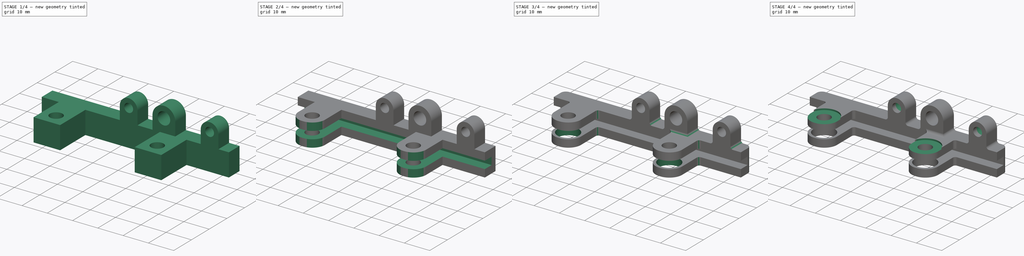
[diagram: build sequence overview — one tinted view per stage of 4, left to right]
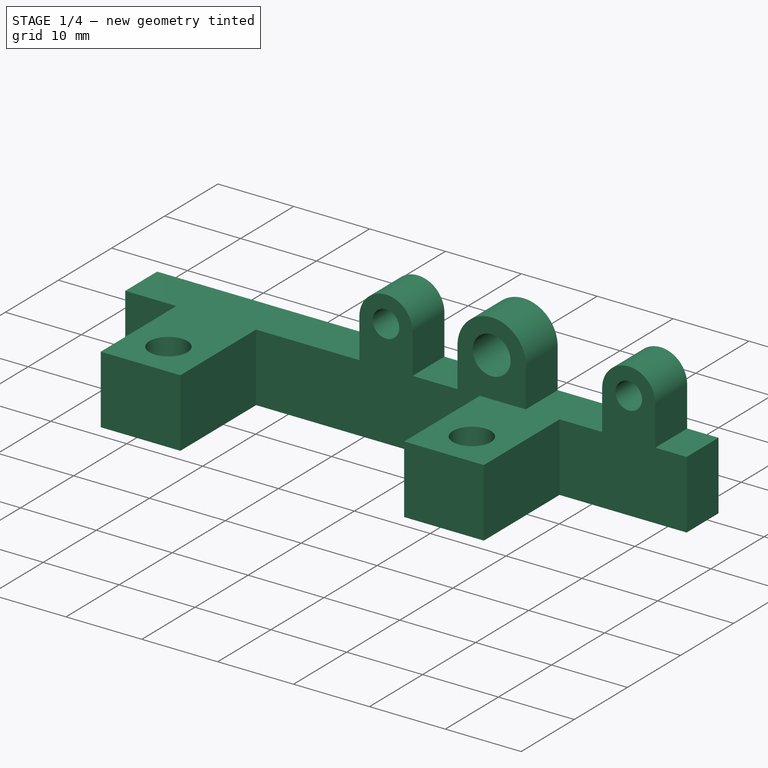
[diagram: stage 1 of 4 — iso view after this stage's code; geometry added in this stage tinted green]
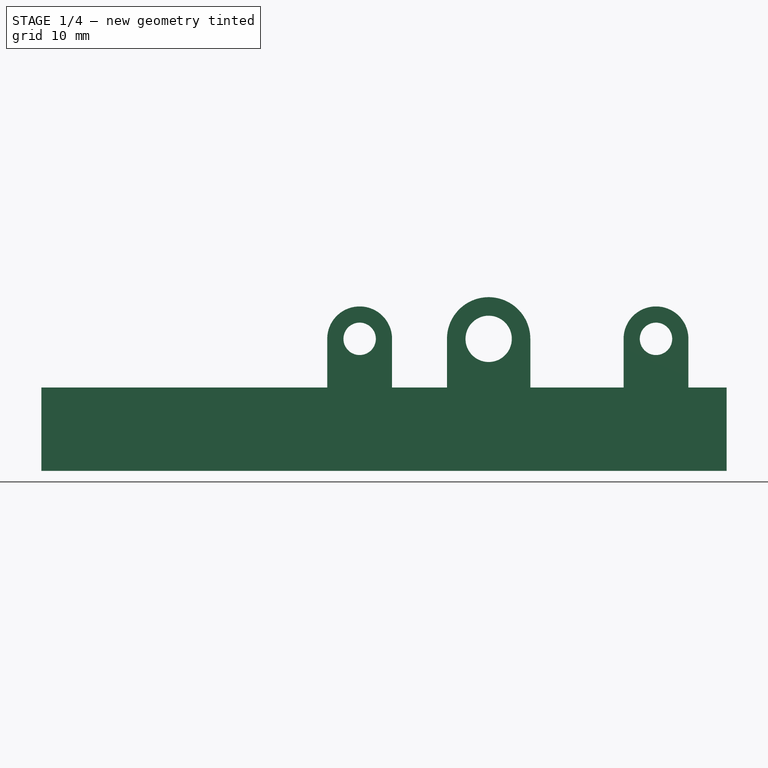
[diagram: stage 1 of 4 — front view after this stage's code; geometry added in this stage tinted green]
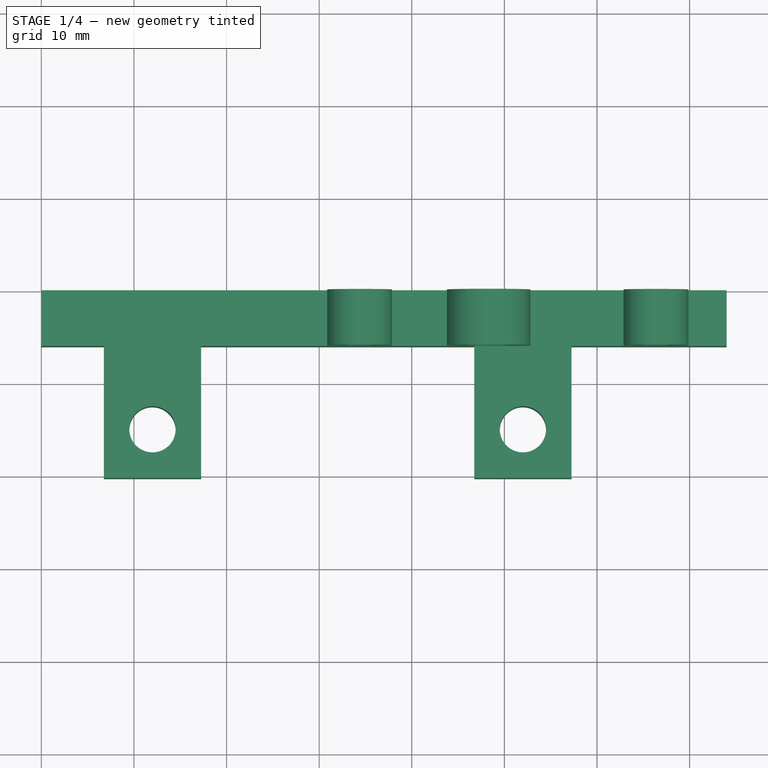
[diagram: stage 1 of 4 — top view after this stage's code; geometry added in this stage tinted green]
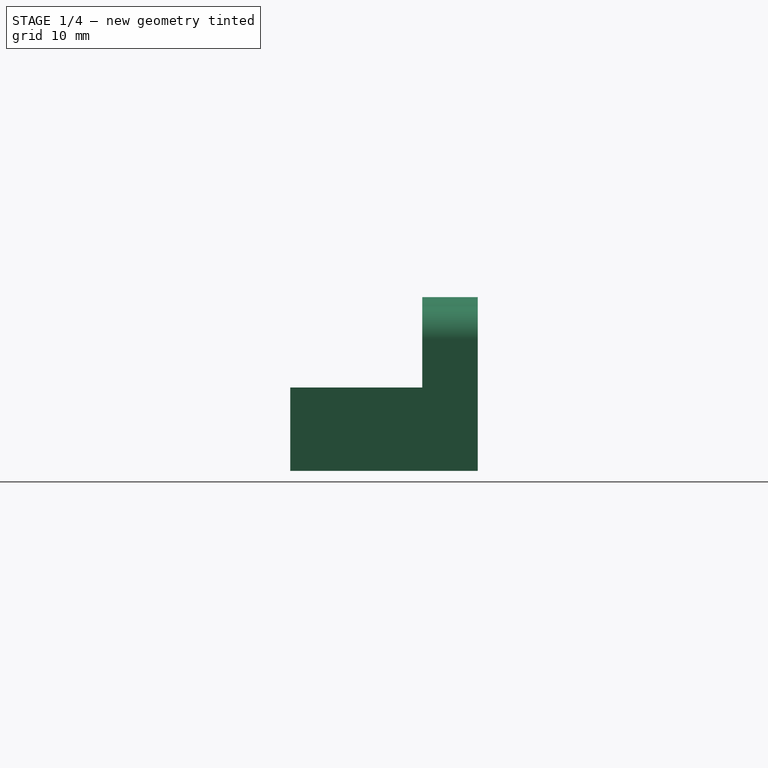
[diagram: stage 1 of 4 — right view after this stage's code; geometry added in this stage tinted green]
FCSTD DOCUMENT  (FreeCAD 1.0R)
Label: sherpa-micro-ender3-mount
License: All rights reserved
LicenseURL: https://en.wikipedia.org/wiki/All_rights_reserved
objects: Sketcher::SketchObject×6, PartDesign::Pocket×4, PartDesign::Fillet×3, PartDesign::Pad×2, PartDesign::Body×1
note: 40 computed .brp shape members not serialized (recipe doc carries the construction recipe); baked Part::Feature solids carry a one-line shape summary decoded from their .brp

FEATURE [Sketcher::SketchObject] Sketch001
  ArcFitTolerance = 1e-06
  AttachmentSupport = -> [XY_Plane]
  FullyConstrained = true
  MakeInternals = false
  MapMode = 5
  sketch-geometry (20):
    g0: LineSegment StartX=74 StartY=-6 StartZ=0 EndX=74 EndY=0 EndZ=0
    g1: LineSegment StartX=74 StartY=0 StartZ=0 EndX=0 EndY=0 EndZ=0
    g2: LineSegment StartX=0 StartY=0 StartZ=0 EndX=0 EndY=-6 EndZ=0
    g3: LineSegment StartX=0 StartY=-6 StartZ=0 EndX=6.75 EndY=-6 EndZ=0
    g4: LineSegment StartX=6.75 StartY=-6 StartZ=0 EndX=6.75 EndY=-20.25 EndZ=0
    g5: LineSegment StartX=6.75 StartY=-20.25 StartZ=0 EndX=17.25 EndY=-20.25 EndZ=0
    g6: LineSegment StartX=17.25 StartY=-20.25 StartZ=0 EndX=17.25 EndY=-6 EndZ=0
    g7: LineSegment StartX=17.25 StartY=-6 StartZ=0 EndX=46.75 EndY=-6 EndZ=0
    g8: LineSegment StartX=46.75 StartY=-6 StartZ=0 EndX=46.75 EndY=-20.25 EndZ=0
    g9: LineSegment StartX=46.75 StartY=-20.25 StartZ=0 EndX=57.25 EndY=-20.25 EndZ=0
    g10: LineSegment StartX=57.25 StartY=-20.25 StartZ=0 EndX=57.25 EndY=-6 EndZ=0
    g11: LineSegment StartX=57.25 StartY=-6 StartZ=0 EndX=74 EndY=-6 EndZ=0
    g12: Circle CenterX=12 CenterY=-15 CenterZ=0 NormalX=0 NormalY=0 NormalZ=1 AngleXU=0 Radius=2.5
    g13: Circle CenterX=52 CenterY=-15 CenterZ=0 NormalX=0 NormalY=0 NormalZ=1 AngleXU=0 Radius=2.5
    g14: LineSegment [constr] StartX=12 StartY=-15 StartZ=0 EndX=6.75 EndY=-15 EndZ=0
    g15: LineSegment [constr] StartX=12 StartY=-15 StartZ=0 EndX=17.25 EndY=-15 EndZ=0
    g16: Circle [constr] CenterX=12 CenterY=-15 CenterZ=0 NormalX=0 NormalY=0 NormalZ=1 AngleXU=0 Radius=4.25
    g17: LineSegment [constr] StartX=52 StartY=-15 StartZ=0 EndX=46.75 EndY=-15 EndZ=0
    g18: LineSegment [constr] StartX=52 StartY=-15 StartZ=0 EndX=57.25 EndY=-15 EndZ=0
    g19: Circle [constr] CenterX=52 CenterY=-15 CenterZ=0 NormalX=0 NormalY=0 NormalZ=1 AngleXU=0 Radius=4.25
  constraints (57):
    c: Coincident(g0,g1)
    c: Coincident(g1,g2)
    c: Vertical(g0)
    c: Vertical(g2)
    c: Horizontal(g1)
    c: Coincident(g1,g-1)
    c: DistanceX(g2,g0) = 74
    c: Distance(g2,g2) = 6
    c: Coincident(g2,g3)
    c: Horizontal(g3)
    c: Coincident(g3,g4)
    c: Vertical(g4)
    c: Coincident(g4,g5)
    c: Horizontal(g5)
    c: Coincident(g5,g6)
    c: Vertical(g6)
    c: Coincident(g6,g7)
    c: Horizontal(g7)
    c: Coincident(g7,g8)
    c: Vertical(g8)
    c: Coincident(g8,g9)
    c: Horizontal(g9)
    c: Coincident(g9,g10)
    c: Vertical(g10)
    c: Coincident(g10,g11)
    c: Coincident(g11,g0)
    c: Horizontal(g11)
    c: Horizontal(g10,g7)
    c: Horizontal(g6,g3)
    c: Diameter(g12) = 5
    c: Diameter(g13) = 5
    c: Coincident(g14,g12)
    c: PointOnObject(g14,g4)
    c: Coincident(g15,g12)
    c: PointOnObject(g15,g6)
    c: Perpendicular(g4,g14)
    c: Perpendicular(g6,g15)
    c: Equal(g14,g15)
    c: Coincident(g16,g12)
    c: Diameter(g16) = 8.5
    c: Distance(g16,g5) = 1
    c: Distance(g16,g6) = 1
    c: Distance(g12,g2) = 12
    c: DistanceY(g12,g-1) = 15
    c: Horizontal(g13,g12)
    c: Coincident(g17,g13)
    c: PointOnObject(g17,g8)
    c: Coincident(g18,g13)
    c: PointOnObject(g18,g10)
    c: Horizontal(g17)
    c: Horizontal(g18)
    c: Equal(g17,g18)
    c: Horizontal(g8,g5)
    c: Equal(g9,g5)
    c: Distance(g13,g2) = 52
    c: Coincident(g19,g13)
    c: Diameter(g19) = 8.5
FEATURE [PartDesign::Pad] Pad  label="Main Shape"
  Direction = (0,0,1)
  Length = 7.5
  Length2 = 1.5
  Profile = -> Sketch001
  ReferenceAxis = -> Sketch001 [N_Axis]
  Refine = true
  Suppressed = false
  Type = 4
FEATURE [Sketcher::SketchObject] Sketch
  ArcFitTolerance = 1e-06
  AttachmentSupport = -> [XZ_Plane]
  FullyConstrained = true
  MakeInternals = false
  MapMode = 5
  Placement = pos=(0,0,0) rot=(1,0,0;1.5708rad)
  sketch-geometry (15):
    g0: Circle CenterX=34.37 CenterY=12.75 CenterZ=0 NormalX=0 NormalY=0 NormalZ=1 AngleXU=0 Radius=1.75
    g1: Circle CenterX=66.37 CenterY=12.75 CenterZ=0 NormalX=0 NormalY=0 NormalZ=1 AngleXU=0 Radius=1.75
    g2: Circle CenterX=48.3 CenterY=12.75 CenterZ=0 NormalX=0 NormalY=0 NormalZ=1 AngleXU=0 Radius=2.5
    g3: ArcOfCircle CenterX=34.37 CenterY=12.75 CenterZ=0 NormalX=0 NormalY=0 NormalZ=1 AngleXU=0 Radius=3.5 StartAngle=3e-16 EndAngle=3.14159
    g4: ArcOfCircle CenterX=34.37 CenterY=4.75 CenterZ=0 NormalX=0 NormalY=0 NormalZ=1 AngleXU=0 Radius=3.5 StartAngle=3.14159 EndAngle=6.28319
    g5: LineSegment StartX=37.87 StartY=12.75 StartZ=0 EndX=37.87 EndY=4.75 EndZ=0
    g6: LineSegment StartX=30.87 StartY=12.75 StartZ=0 EndX=30.87 EndY=4.75 EndZ=0
    g7: ArcOfCircle CenterX=48.3 CenterY=12.75 CenterZ=0 NormalX=0 NormalY=0 NormalZ=1 AngleXU=0 Radius=4.5 StartAngle=0 EndAngle=3.14159
    g8: ArcOfCircle CenterX=48.3 CenterY=4.75 CenterZ=0 NormalX=0 NormalY=0 NormalZ=1 AngleXU=0 Radius=4.5 StartAngle=3.14159 EndAngle=6.28319
    g9: LineSegment StartX=52.8 StartY=12.75 StartZ=0 EndX=52.8 EndY=4.75 EndZ=0
    g10: LineSegment StartX=43.8 StartY=12.75 StartZ=0 EndX=43.8 EndY=4.75 EndZ=0
    g11: ArcOfCircle CenterX=66.37 CenterY=12.75 CenterZ=0 NormalX=0 NormalY=0 NormalZ=1 AngleXU=0 Radius=3.5 StartAngle=1e-16 EndAngle=3.14159
    g12: ArcOfCircle CenterX=66.37 CenterY=4.75 CenterZ=0 NormalX=0 NormalY=0 NormalZ=1 AngleXU=0 Radius=3.5 StartAngle=3.14159 EndAngle=6.28319
    g13: LineSegment StartX=69.87 StartY=12.75 StartZ=0 EndX=69.87 EndY=4.75 EndZ=0
    g14: LineSegment StartX=62.87 StartY=12.75 StartZ=0 EndX=62.87 EndY=4.75 EndZ=0
  constraints (36):
    c: Diameter(g0) = 3.5
    c: Diameter(g1) = 3.5
    c: Horizontal(g0,g1)
    c: Distance(g0,g-1) = 12.75
    c: DistanceX(g0,g1) = 32
    c: Distance(g0,g-2) = 34.37
    c: Horizontal(g2,g0)
    c: Diameter(g2) = 5
    c: Distance(g2,g-2) = 48.3
    c: Tangent(g3,g5) = 1.5708
    c: Tangent(g3,g6) = -1.5708
    c: Tangent(g4,g5) = 1.5708
    c: Tangent(g4,g6) = -1.5708
    c: Equal(g3,g4)
    c: Vertical(g6)
    c: Distance(g3,g4) = 8
    c: Radius(g3) = 3.5
    c: Coincident(g3,g0)
    c: Tangent(g7,g9) = 1.5708
    c: Tangent(g7,g10) = -1.5708
    c: Tangent(g8,g9) = 1.5708
    c: Tangent(g8,g10) = -1.5708
    c: Equal(g7,g8)
    c: Vertical(g10)
    c: Distance(g7,g8) = 8
    c: Radius(g7) = 4.5
    c: Coincident(g7,g2)
    c: Tangent(g11,g13) = 1.5708
    c: Tangent(g11,g14) = -1.5708
    c: Tangent(g12,g13) = 1.5708
    c: Tangent(g12,g14) = -1.5708
    c: Equal(g11,g12)
    c: Vertical(g14)
    c: Distance(g11,g12) = 8
    c: Radius(g11) = 3.5
    c: Coincident(g11,g1)
FEATURE [PartDesign::Pad] Pad001  label="Sherpa Mount Legs"
  BaseFeature = -> Pad
  Direction = (0,-1,2e-16)
  Length = 6
  Length2 = 10
  Profile = -> Sketch
  ReferenceAxis = -> Sketch [N_Axis]
  Refine = true
  Suppressed = false
  Type = 0
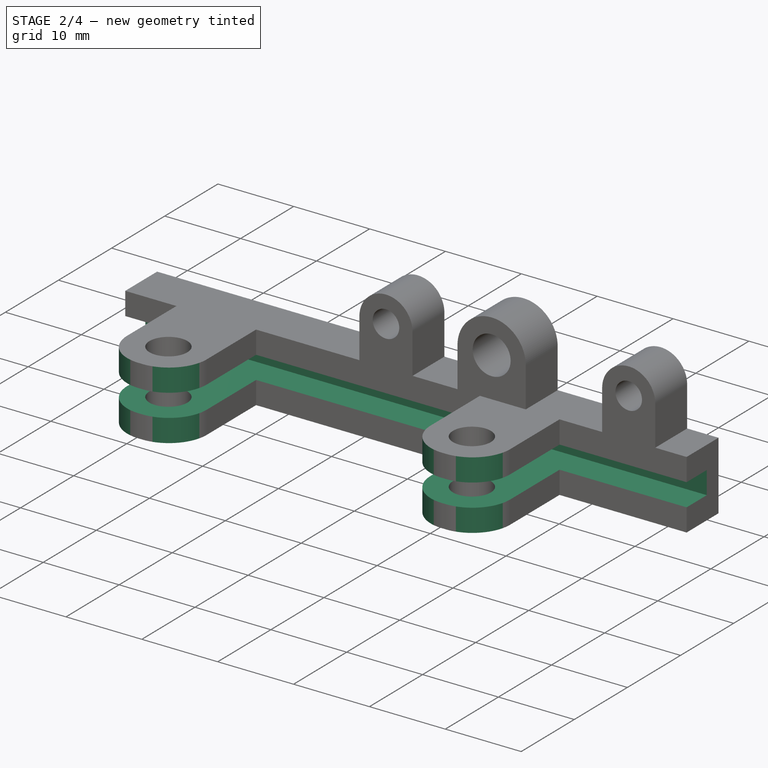
[diagram: stage 2 of 4 — iso view after this stage's code; geometry added in this stage tinted green]
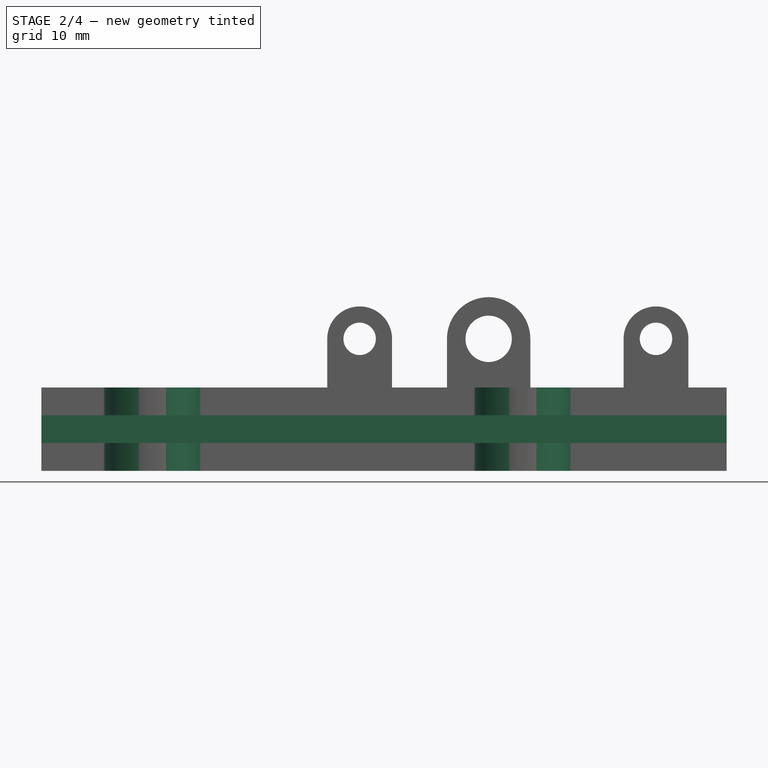
[diagram: stage 2 of 4 — front view after this stage's code; geometry added in this stage tinted green]
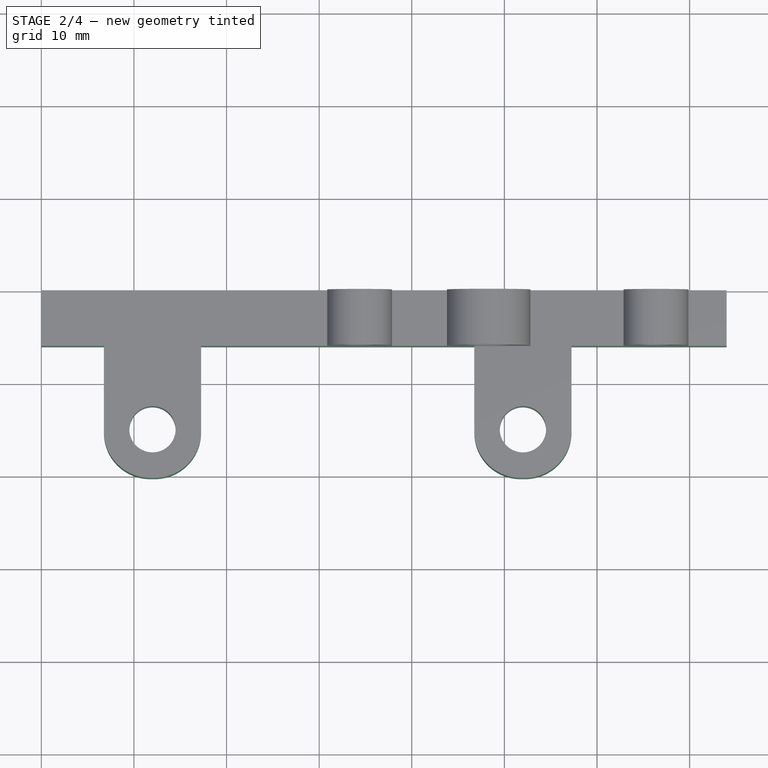
[diagram: stage 2 of 4 — top view after this stage's code; geometry added in this stage tinted green]
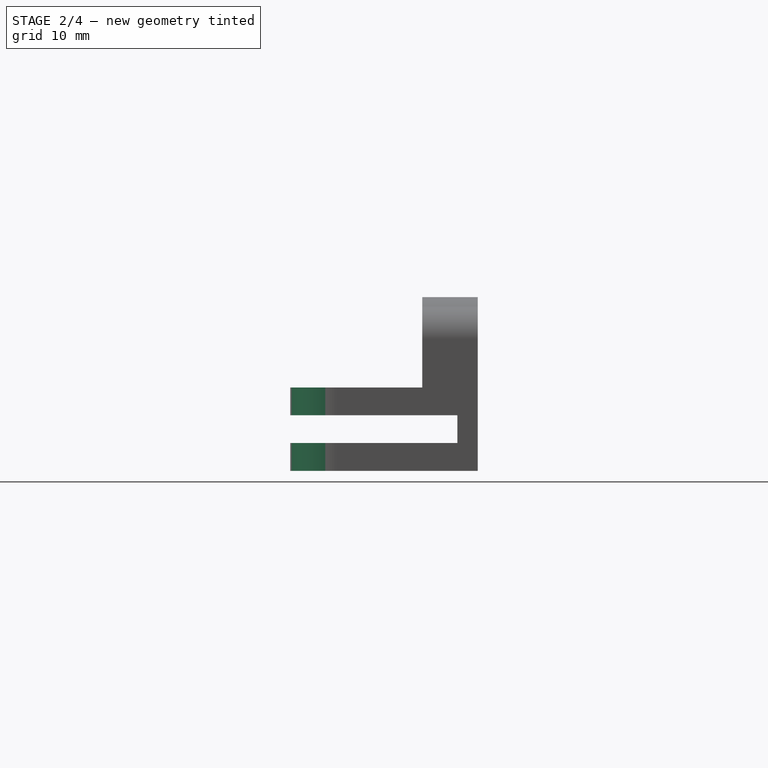
[diagram: stage 2 of 4 — right view after this stage's code; geometry added in this stage tinted green]
FEATURE [Sketcher::SketchObject] Sketch003
  ArcFitTolerance = 1e-06
  AttachmentSupport = -> [YZ_Plane]
  FullyConstrained = true
  MakeInternals = false
  MapMode = 5
  Placement = pos=(0,0,0) rot=(0.57735,0.57735,0.57735;2.0944rad)
  sketch-geometry (4):
    g0: LineSegment StartX=-22.2 StartY=4.5 StartZ=0 EndX=-22.2 EndY=1.5 EndZ=0
    g1: LineSegment StartX=-22.2 StartY=1.5 StartZ=0 EndX=-2.2 EndY=1.5 EndZ=0
    g2: LineSegment StartX=-2.2 StartY=1.5 StartZ=0 EndX=-2.2 EndY=4.5 EndZ=0
    g3: LineSegment StartX=-2.2 StartY=4.5 StartZ=0 EndX=-22.2 EndY=4.5 EndZ=0
  constraints (12):
    c: Coincident(g0,g1)
    c: Coincident(g1,g2)
    c: Coincident(g2,g3)
    c: Coincident(g3,g0)
    c: Vertical(g0)
    c: Vertical(g2)
    c: Horizontal(g1)
    c: Horizontal(g3)
    c: DistanceY(g2,g2) = 3
    c: DistanceX(g1,g1) = 20
    c: Distance(g-1,g1) = 1.5
    c: Distance(g-2,g2) = 2.2
FEATURE [PartDesign::Pocket] Pocket  label="Pocket Plate Trench"
  BaseFeature = -> Pad001
  Direction = (-1,0,0)
  Length = 100
  Length2 = 100
  Profile = -> Sketch003
  ReferenceAxis = -> Sketch003 [N_Axis]
  Refine = true
  Suppressed = false
  Type = 4
FEATURE [PartDesign::Fillet] Fillet  label="Fillet Legs"
  Base = -> Pocket [Edge83,Edge122,Edge121,Edge84,Edge80,Edge125,Edge126,Edge79]
  BaseFeature = -> Pocket
  Radius = 5
  Refine = true
  SupportTransform = false
  Suppressed = false
  UseAllEdges = false
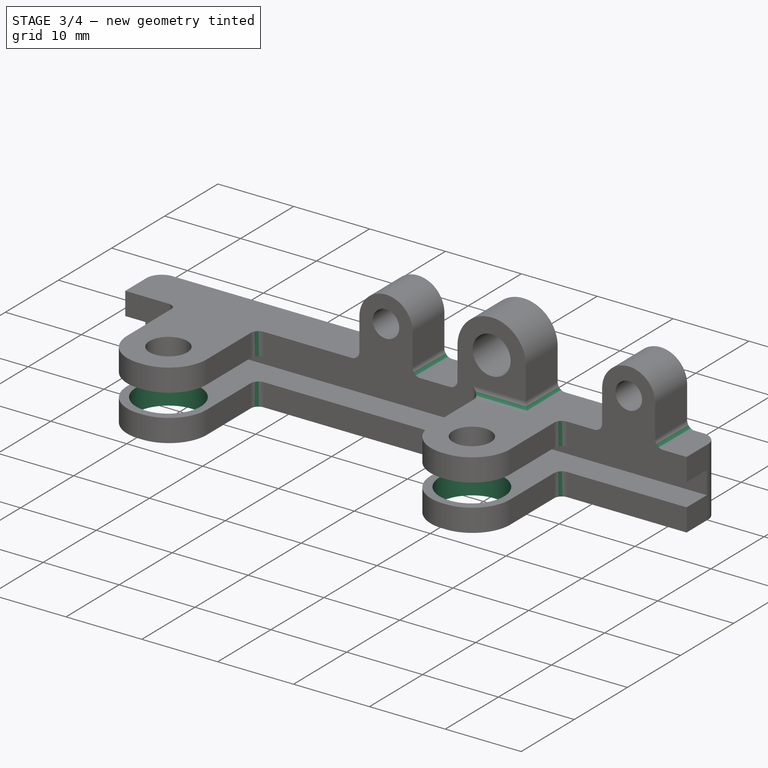
[diagram: stage 3 of 4 — iso view after this stage's code; geometry added in this stage tinted green]
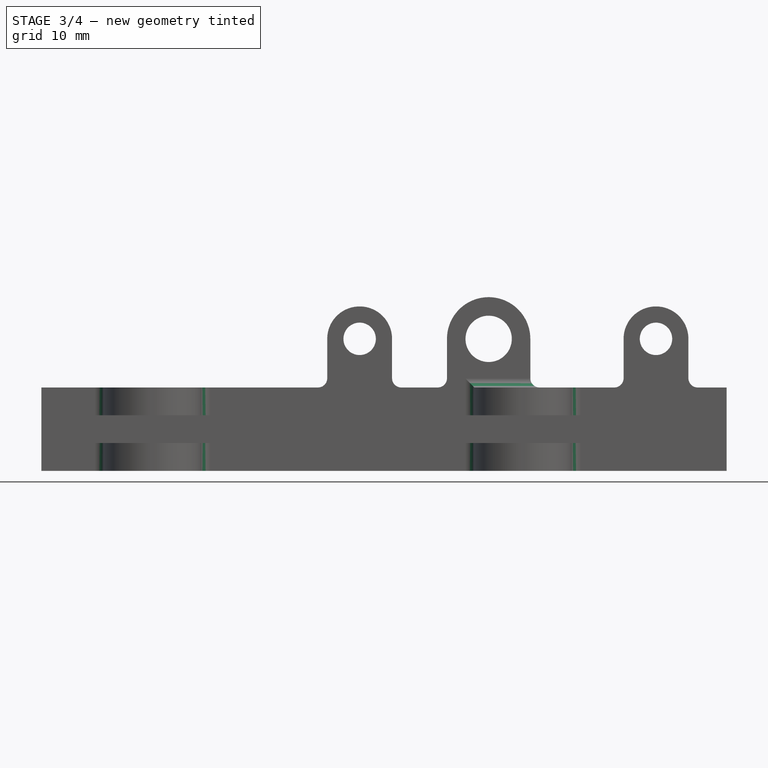
[diagram: stage 3 of 4 — front view after this stage's code; geometry added in this stage tinted green]
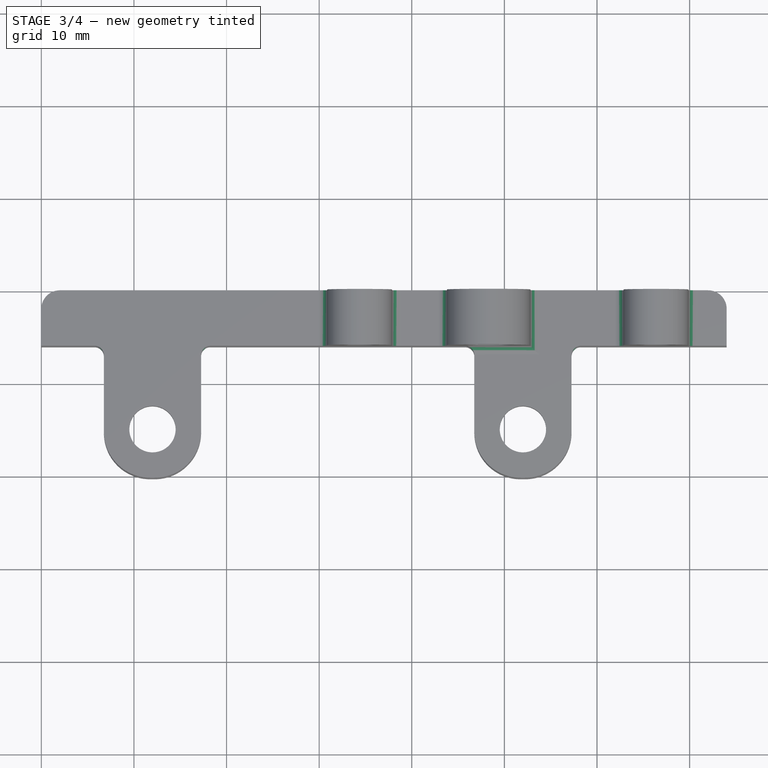
[diagram: stage 3 of 4 — top view after this stage's code; geometry added in this stage tinted green]
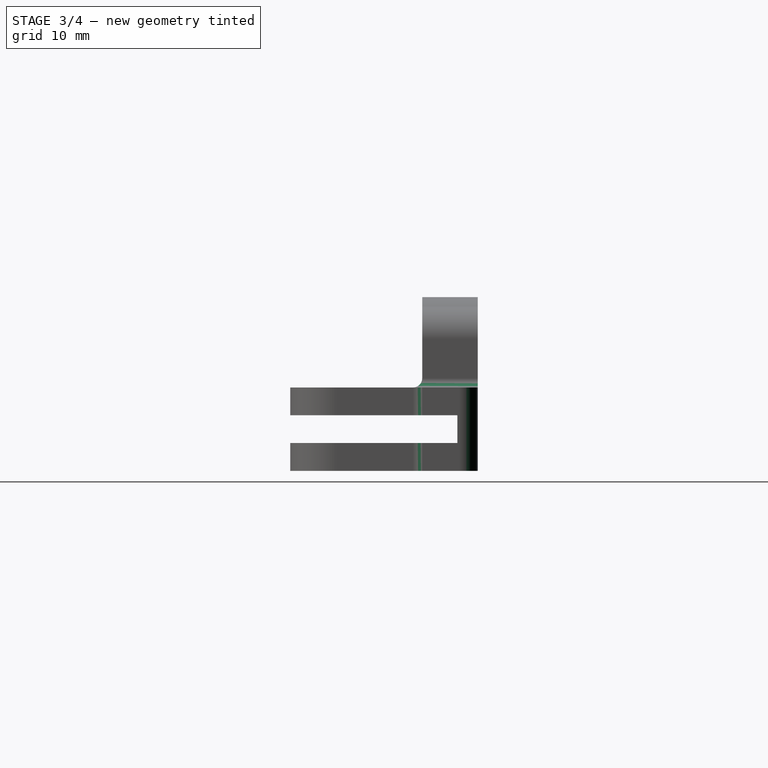
[diagram: stage 3 of 4 — right view after this stage's code; geometry added in this stage tinted green]
FEATURE [PartDesign::Fillet] Fillet001  label="Fillet Sides"
  Base = -> Fillet [Edge49,Edge33]
  BaseFeature = -> Fillet
  Radius = 2
  Refine = true
  SupportTransform = false
  Suppressed = false
  UseAllEdges = false
FEATURE [PartDesign::Fillet] Fillet002  label="Fillet Joints"
  Base = -> Fillet001 [Edge132,Edge131,Edge149,Edge147,Edge121,Edge111,Edge63,Edge74,Edge95,Edge30,Edge134,Edge84,Edge123,Edge148,Edge69]
  BaseFeature = -> Fillet001
  Radius = 1
  Refine = true
  SupportTransform = false
  Suppressed = false
  UseAllEdges = false
FEATURE [Sketcher::SketchObject] Sketch004
  ArcFitTolerance = 1e-06
  AttachmentSupport = -> [XY_Plane]
  FullyConstrained = true
  MakeInternals = false
  MapMode = 5
  sketch-geometry (20):
    g0: LineSegment [constr] StartX=74 StartY=-6 StartZ=0 EndX=74 EndY=0 EndZ=0
    g1: LineSegment [constr] StartX=74 StartY=0 StartZ=0 EndX=0 EndY=0 EndZ=0
    g2: LineSegment [constr] StartX=0 StartY=0 StartZ=0 EndX=0 EndY=-6 EndZ=0
    g3: LineSegment [constr] StartX=0 StartY=-6 StartZ=0 EndX=6.75 EndY=-6 EndZ=0
    g4: LineSegment [constr] StartX=6.75 StartY=-6 StartZ=0 EndX=6.75 EndY=-20.25 EndZ=0
    g5: LineSegment [constr] StartX=6.75 StartY=-20.25 StartZ=0 EndX=17.25 EndY=-20.25 EndZ=0
    g6: LineSegment [constr] StartX=17.25 StartY=-20.25 StartZ=0 EndX=17.25 EndY=-6 EndZ=0
    g7: LineSegment [constr] StartX=17.25 StartY=-6 StartZ=0 EndX=46.75 EndY=-6 EndZ=0
    g8: LineSegment [constr] StartX=46.75 StartY=-6 StartZ=0 EndX=46.75 EndY=-20.25 EndZ=0
    g9: LineSegment [constr] StartX=46.75 StartY=-20.25 StartZ=0 EndX=57.25 EndY=-20.25 EndZ=0
    g10: LineSegment [constr] StartX=57.25 StartY=-20.25 StartZ=0 EndX=57.25 EndY=-6 EndZ=0
    g11: LineSegment [constr] StartX=57.25 StartY=-6 StartZ=0 EndX=74 EndY=-6 EndZ=0
    g12: Circle [constr] CenterX=12 CenterY=-15 CenterZ=0 NormalX=0 NormalY=0 NormalZ=1 AngleXU=0 Radius=2.5
    g13: Circle [constr] CenterX=52 CenterY=-15 CenterZ=0 NormalX=0 NormalY=0 NormalZ=1 AngleXU=0 Radius=2.5
    g14: LineSegment [constr] StartX=12 StartY=-15 StartZ=0 EndX=6.75 EndY=-15 EndZ=0
    g15: LineSegment [constr] StartX=12 StartY=-15 StartZ=0 EndX=17.25 EndY=-15 EndZ=0
    g16: Circle CenterX=12 CenterY=-15 CenterZ=0 NormalX=0 NormalY=0 NormalZ=1 AngleXU=0 Radius=4.25
    g17: LineSegment [constr] StartX=52 StartY=-15 StartZ=0 EndX=46.75 EndY=-15 EndZ=0
    g18: LineSegment [constr] StartX=52 StartY=-15 StartZ=0 EndX=57.25 EndY=-15 EndZ=0
    g19: Circle CenterX=52 CenterY=-15 CenterZ=0 NormalX=0 NormalY=0 NormalZ=1 AngleXU=0 Radius=4.25
  constraints (57):
    c: Coincident(g0,g1)
    c: Coincident(g1,g2)
    c: Vertical(g0)
    c: Vertical(g2)
    c: Horizontal(g1)
    c: Coincident(g1,g-1)
    c: DistanceX(g2,g0) = 74
    c: Distance(g2,g2) = 6
    c: Coincident(g2,g3)
    c: Horizontal(g3)
    c: Coincident(g3,g4)
    c: Vertical(g4)
    c: Coincident(g4,g5)
    c: Horizontal(g5)
    c: Coincident(g5,g6)
    c: Vertical(g6)
    c: Coincident(g6,g7)
    c: Horizontal(g7)
    c: Coincident(g7,g8)
    c: Vertical(g8)
    c: Coincident(g8,g9)
    c: Horizontal(g9)
    c: Coincident(g9,g10)
    c: Vertical(g10)
    c: Coincident(g10,g11)
    c: Coincident(g11,g0)
    c: Horizontal(g11)
    c: Horizontal(g10,g7)
    c: Horizontal(g6,g3)
    c: Diameter(g12) = 5
    c: Diameter(g13) = 5
    c: Coincident(g14,g12)
    c: PointOnObject(g14,g4)
    c: Coincident(g15,g12)
    c: PointOnObject(g15,g6)
    c: Perpendicular(g4,g14)
    c: Perpendicular(g6,g15)
    c: Equal(g14,g15)
    c: Coincident(g16,g12)
    c: Diameter(g16) = 8.5
    c: Distance(g16,g5) = 1
    c: Distance(g16,g6) = 1
    c: Distance(g12,g2) = 12
    c: DistanceY(g12,g-1) = 15
    c: Horizontal(g13,g12)
    c: Coincident(g17,g13)
    c: PointOnObject(g17,g8)
    c: Coincident(g18,g13)
    c: PointOnObject(g18,g10)
    c: Horizontal(g17)
    c: Horizontal(g18)
    c: Equal(g17,g18)
    c: Horizontal(g8,g5)
    c: Equal(g9,g5)
    c: Distance(g13,g2) = 52
    c: Coincident(g19,g13)
    c: Diameter(g19) = 8.5
FEATURE [PartDesign::Pocket] Pocket001  label="Pocket Bearing Spacer"
  BaseFeature = -> Fillet002
  Direction = (0,0,-1)
  Length = 2
  Length2 = 2
  Profile = -> Sketch004
  ReferenceAxis = -> Sketch004 [N_Axis]
  Refine = true
  Suppressed = false
  Type = 4
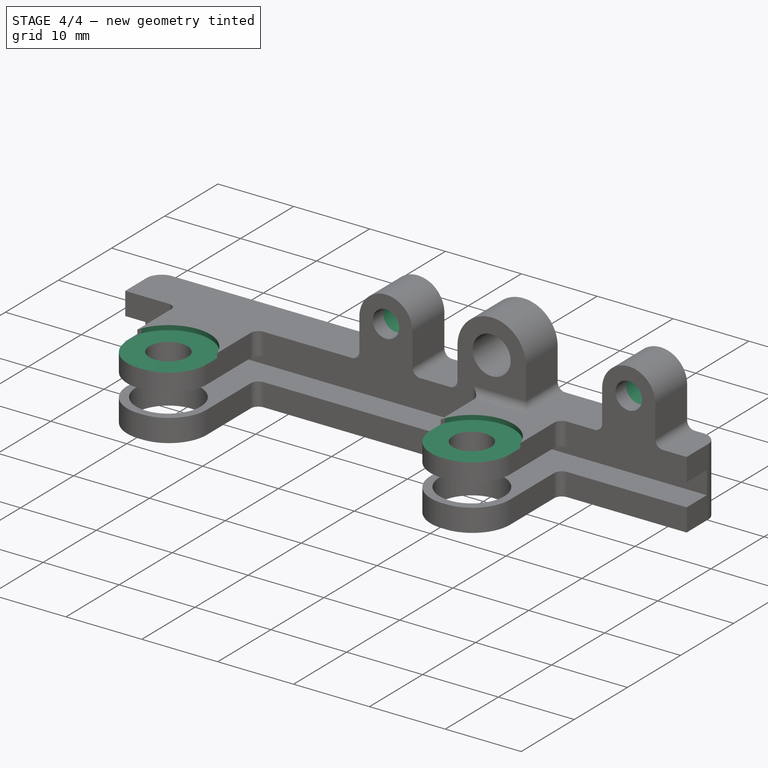
[diagram: stage 4 of 4 — iso view after this stage's code; geometry added in this stage tinted green]
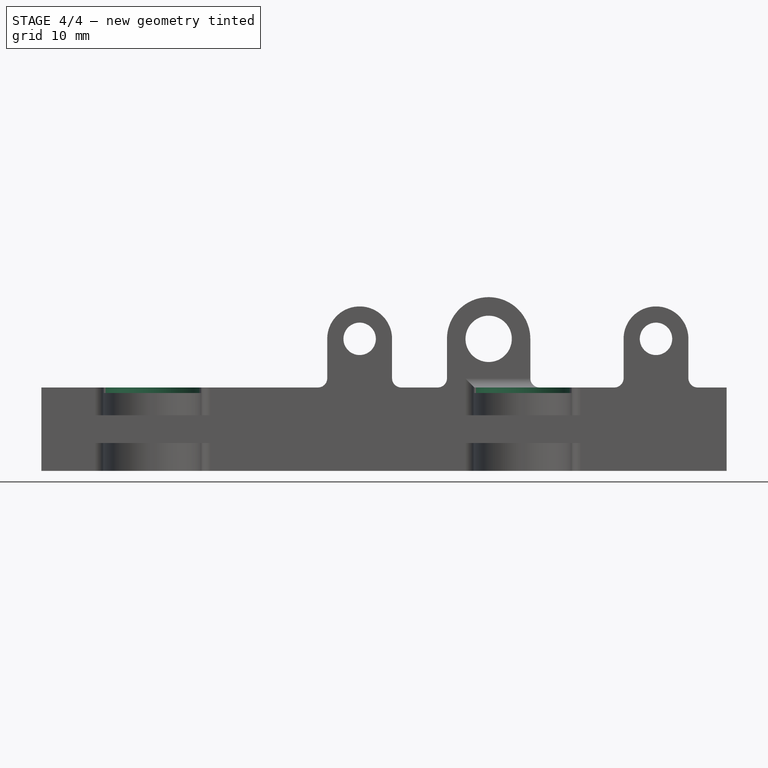
[diagram: stage 4 of 4 — front view after this stage's code; geometry added in this stage tinted green]
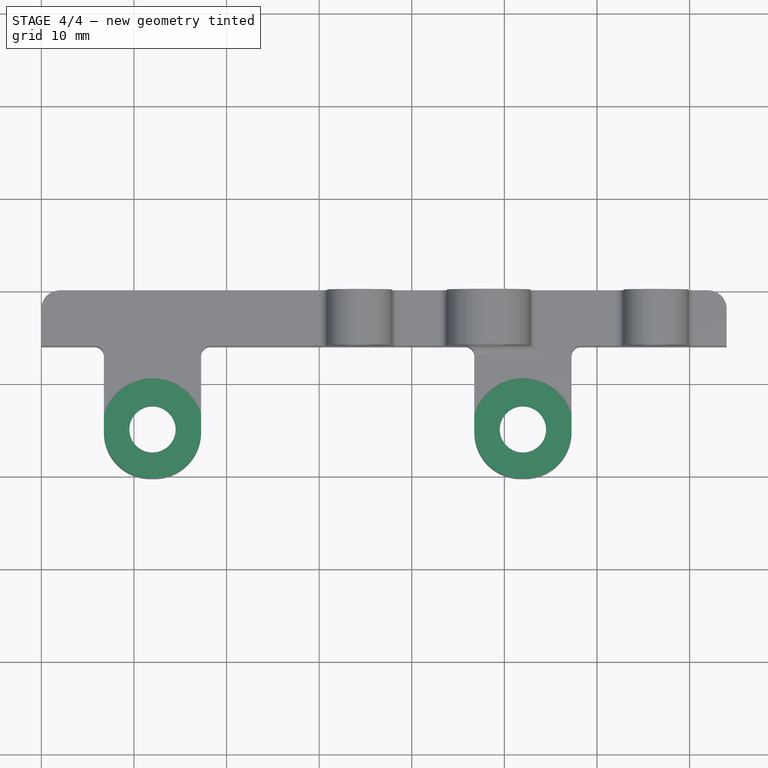
[diagram: stage 4 of 4 — top view after this stage's code; geometry added in this stage tinted green]
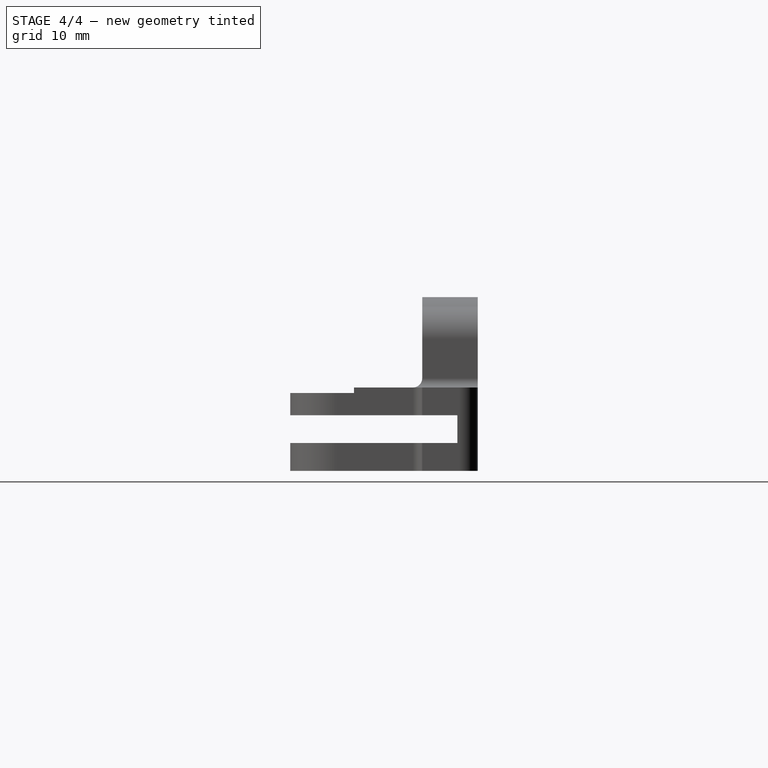
[diagram: stage 4 of 4 — right view after this stage's code; geometry added in this stage tinted green]
FEATURE [Sketcher::SketchObject] Sketch005
  ArcFitTolerance = 1e-06
  AttachmentOffset = pos=(0,0,6.9) rot=(0,0,1;0rad)
  AttachmentSupport = -> [XY_Plane]
  FullyConstrained = true
  MakeInternals = false
  MapMode = 5
  Placement = pos=(0,0,6.9) rot=(0,0,1;0rad)
  sketch-geometry (20):
    g0: LineSegment [constr] StartX=74 StartY=-6 StartZ=0 EndX=74 EndY=0 EndZ=0
    g1: LineSegment [constr] StartX=74 StartY=0 StartZ=0 EndX=0 EndY=0 EndZ=0
    g2: LineSegment [constr] StartX=0 StartY=0 StartZ=0 EndX=0 EndY=-6 EndZ=0
    g3: LineSegment [constr] StartX=0 StartY=-6 StartZ=0 EndX=5.5 EndY=-6 EndZ=0
    g4: LineSegment [constr] StartX=5.5 StartY=-6 StartZ=0 EndX=5.5 EndY=-21.5 EndZ=0
    g5: LineSegment [constr] StartX=5.5 StartY=-21.5 StartZ=0 EndX=18.5 EndY=-21.5 EndZ=0
    g6: LineSegment [constr] StartX=18.5 StartY=-21.5 StartZ=0 EndX=18.5 EndY=-6 EndZ=0
    g7: LineSegment [constr] StartX=18.5 StartY=-6 StartZ=0 EndX=45.5 EndY=-6 EndZ=0
    g8: LineSegment [constr] StartX=45.5 StartY=-6 StartZ=0 EndX=45.5 EndY=-21.5 EndZ=0
    g9: LineSegment [constr] StartX=45.5 StartY=-21.5 StartZ=0 EndX=58.5 EndY=-21.5 EndZ=0
    g10: LineSegment [constr] StartX=58.5 StartY=-21.5 StartZ=0 EndX=58.5 EndY=-6 EndZ=0
    g11: LineSegment [constr] StartX=58.5 StartY=-6 StartZ=0 EndX=74 EndY=-6 EndZ=0
    g12: Circle [constr] CenterX=12 CenterY=-15 CenterZ=0 NormalX=0 NormalY=0 NormalZ=1 AngleXU=0 Radius=2.5
    g13: Circle [constr] CenterX=52 CenterY=-15 CenterZ=0 NormalX=0 NormalY=0 NormalZ=1 AngleXU=0 Radius=2.5
    g14: LineSegment [constr] StartX=12 StartY=-15 StartZ=0 EndX=5.5 EndY=-15 EndZ=0
    g15: LineSegment [constr] StartX=12 StartY=-15 StartZ=0 EndX=18.5 EndY=-15 EndZ=0
    g16: Circle CenterX=12 CenterY=-15 CenterZ=0 NormalX=0 NormalY=0 NormalZ=1 AngleXU=0 Radius=5.5
    g17: LineSegment [constr] StartX=52 StartY=-15 StartZ=0 EndX=45.5 EndY=-15 EndZ=0
    g18: LineSegment [constr] StartX=52 StartY=-15 StartZ=0 EndX=58.5 EndY=-15 EndZ=0
    g19: Circle CenterX=52 CenterY=-15 CenterZ=0 NormalX=0 NormalY=0 NormalZ=1 AngleXU=0 Radius=5.5
  constraints (57):
    c: Coincident(g0,g1)
    c: Coincident(g1,g2)
    c: Vertical(g0)
    c: Vertical(g2)
    c: Horizontal(g1)
    c: Coincident(g1,g-1)
    c: DistanceX(g2,g0) = 74
    c: Distance(g2,g2) = 6
    c: Coincident(g2,g3)
    c: Horizontal(g3)
    c: Coincident(g3,g4)
    c: Vertical(g4)
    c: Coincident(g4,g5)
    c: Horizontal(g5)
    c: Coincident(g5,g6)
    c: Vertical(g6)
    c: Coincident(g6,g7)
    c: Horizontal(g7)
    c: Coincident(g7,g8)
    c: Vertical(g8)
    c: Coincident(g8,g9)
    c: Horizontal(g9)
    c: Coincident(g9,g10)
    c: Vertical(g10)
    c: Coincident(g10,g11)
    c: Coincident(g11,g0)
    c: Horizontal(g11)
    c: Horizontal(g10,g7)
    c: Horizontal(g6,g3)
    c: Diameter(g12) = 5
    c: Diameter(g13) = 5
    c: Coincident(g14,g12)
    c: PointOnObject(g14,g4)
    c: Coincident(g15,g12)
    c: PointOnObject(g15,g6)
    c: Perpendicular(g4,g14)
    c: Perpendicular(g6,g15)
    c: Equal(g14,g15)
    c: Coincident(g16,g12)
    c: Diameter(g16) = 11
    c: Distance(g16,g5) = 1
    c: Distance(g16,g6) = 1
    c: Distance(g12,g2) = 12
    c: DistanceY(g12,g-1) = 15
    c: Horizontal(g13,g12)
    c: Coincident(g17,g13)
    c: PointOnObject(g17,g8)
    c: Coincident(g18,g13)
    c: PointOnObject(g18,g10)
    c: Horizontal(g17)
    c: Horizontal(g18)
    c: Equal(g17,g18)
    c: Horizontal(g8,g5)
    c: Equal(g9,g5)
    c: Distance(g13,g2) = 52
    c: Coincident(g19,g13)
    c: Diameter(g19) = 11
FEATURE [PartDesign::Pocket] Pocket002  label="Pocket Bearing Screw Heads"
  BaseFeature = -> Pocket001
  Direction = (0,0,-1)
  Length = 5
  Length2 = 5
  Profile = -> Sketch005
  ReferenceAxis = -> Sketch005 [N_Axis]
  Refine = true
  Reversed = true
  Suppressed = false
  Type = 0
FEATURE [Sketcher::SketchObject] Sketch006
  ArcFitTolerance = 1e-06
  AttachmentSupport = -> [XZ_Plane]
  FullyConstrained = true
  MakeInternals = false
  MapMode = 5
  Placement = pos=(0,0,0) rot=(1,0,0;1.5708rad)
  sketch-geometry (2):
    g0: Circle CenterX=34.37 CenterY=12.75 CenterZ=0 NormalX=0 NormalY=0 NormalZ=1 AngleXU=0 Radius=2.25
    g1: Circle CenterX=66.37 CenterY=12.75 CenterZ=0 NormalX=0 NormalY=0 NormalZ=1 AngleXU=0 Radius=2.25
  constraints (6):
    c: Diameter(g0) = 4.5
    c: Diameter(g1) = 4.5
    c: Horizontal(g0,g1)
    c: Distance(g0,g-1) = 12.75
    c: DistanceX(g0,g1) = 32
    c: Distance(g0,g-2) = 34.37
FEATURE [PartDesign::Pocket] Pocket003  label="Pocket Insert"
  BaseFeature = -> Pocket002
  Direction = (0,1,-2e-16)
  Length = 4
  Length2 = 5
  Profile = -> Sketch006
  ReferenceAxis = -> Sketch006 [N_Axis]
  Refine = true
  Reversed = true
  Suppressed = false
  Type = 0
FEATURE [PartDesign::Body] Body  label="Mount Sherpa Micro Ender 3"
  AllowCompound = false
  Group = -> [Sketch001,Pad,Sketch,Pad001,Sketch003,Pocket,Fillet,Fillet001,Fillet002,Sketch004,Pocket001,Sketch005,Pocket002,Sketch006,Pocket003]
  Origin = -> Origin
  Tip = -> Pocket003
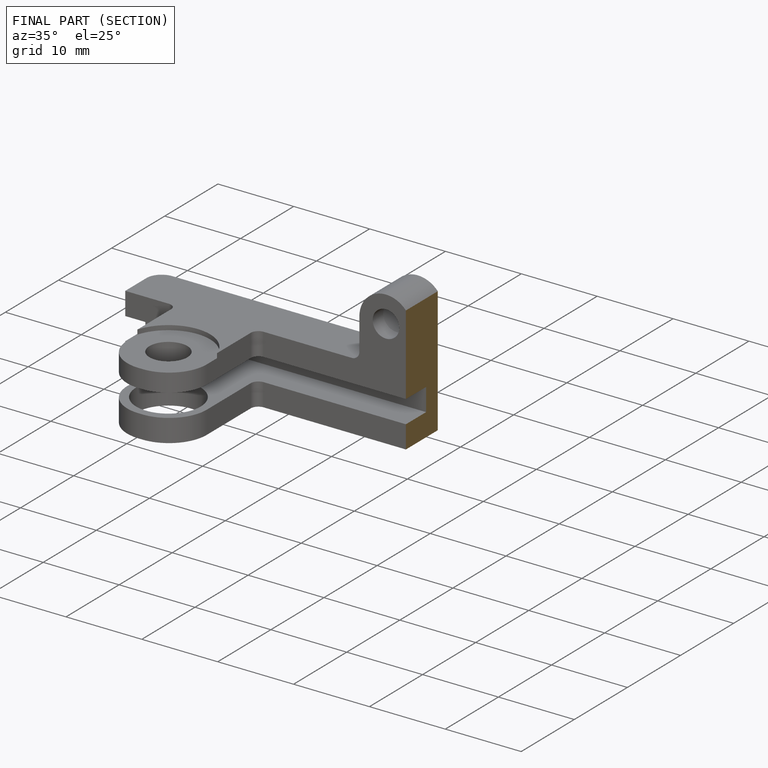
[diagram: finished part — half-section view (interior)]
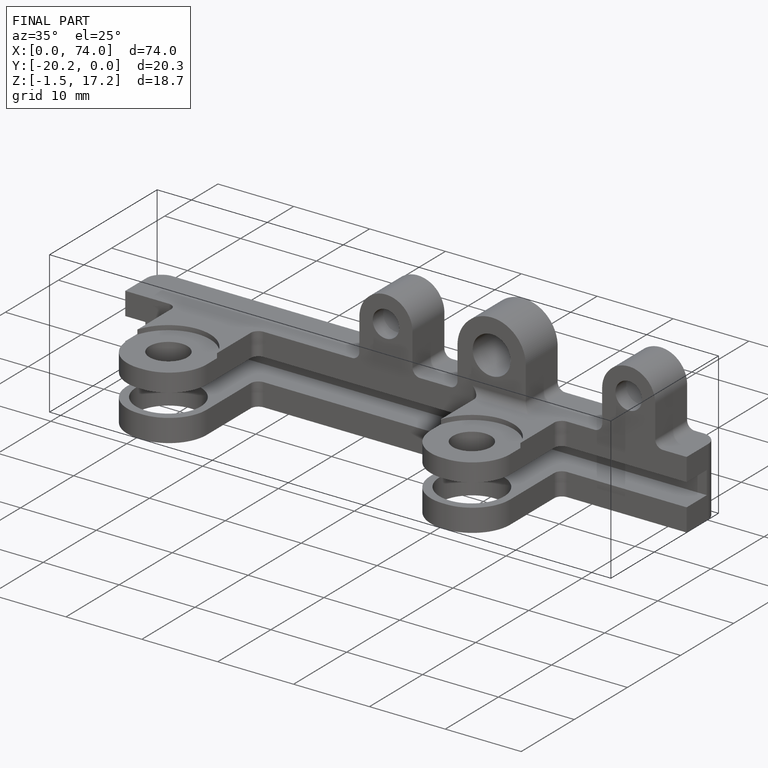
[diagram: finished part — iso view with bounding-box wireframe]
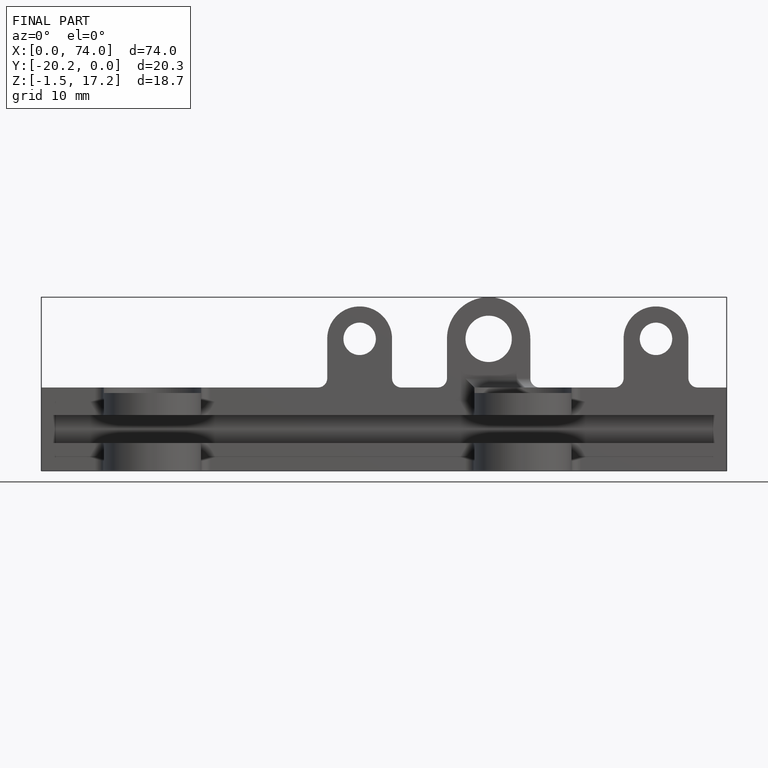
[diagram: finished part — front view with bounding-box wireframe]
